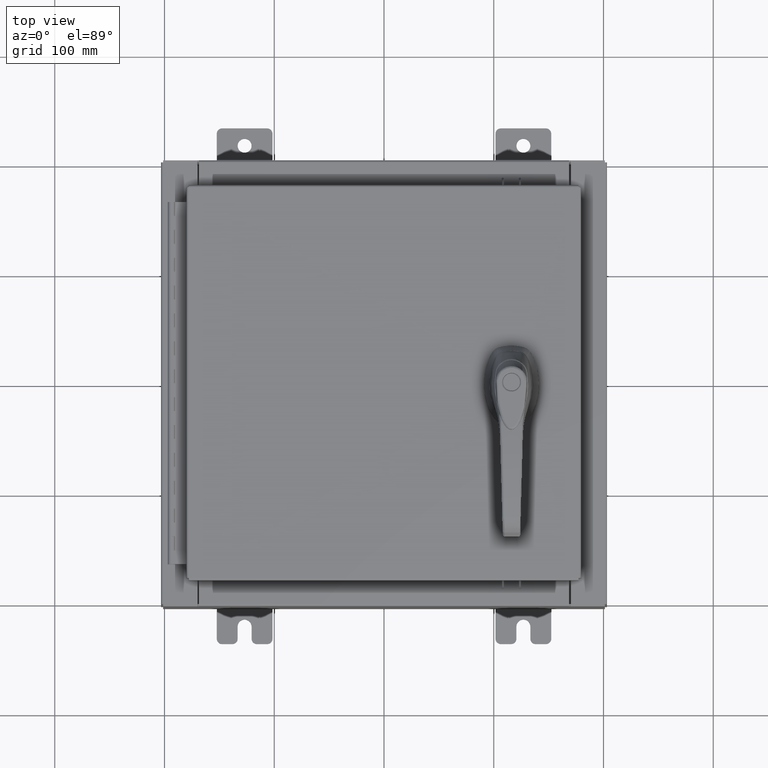
[diagram: clean part render]
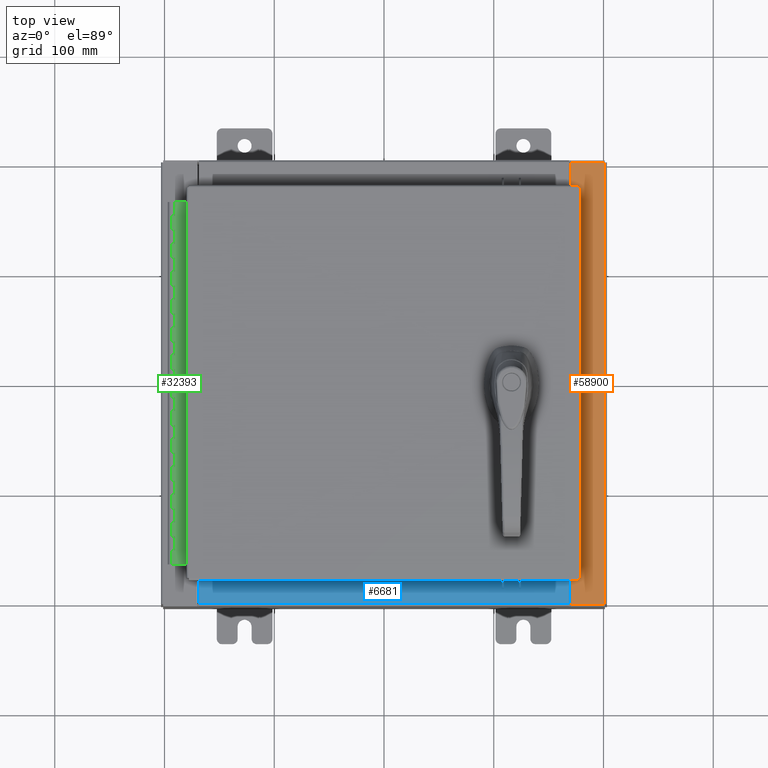
[diagram: same view with three faces highlighted in distinct colors, each labeled with its STEP entity id]
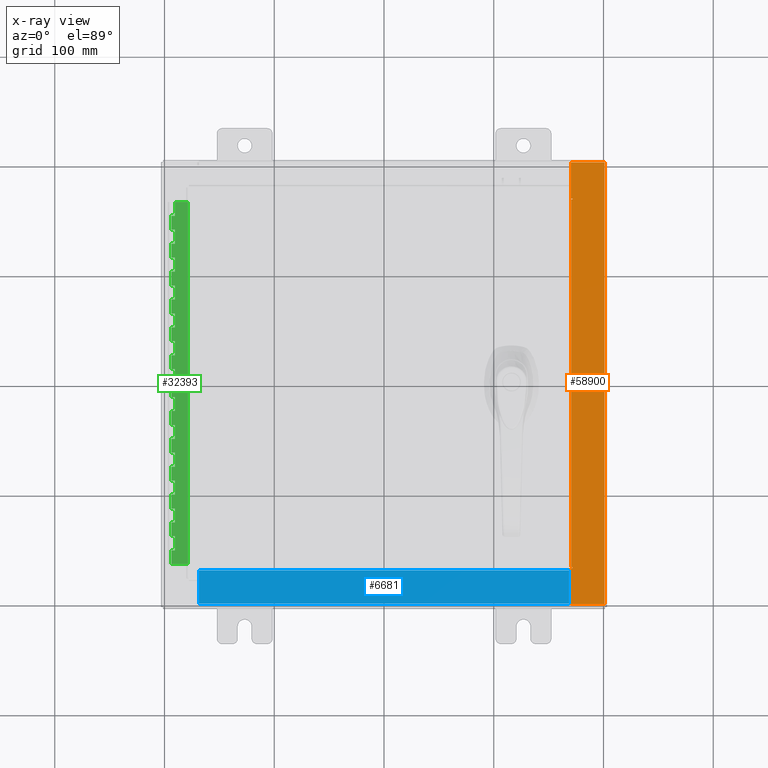
[diagram: x-ray of the same camera — body ghosted, the three highlighted faces saturated]
A machine part, top view with three faces highlighted in distinct colors.
The next image is the same camera in x-ray (body ghosted, the three faces saturated) — at least one of them is partly hidden behind the body in this view.
Their STEP definitions:

[orange] entity #58900 — the highlighted planar face has unit normal (-0, 0, -1).
#542 = VERTEX_POINT ( 'NONE', #72777 ) ;
#3331 = LINE ( 'NONE', #32971, #51940 ) ;
#3447 = VERTEX_POINT ( 'NONE', #53667 ) ;
#4137 = LINE ( 'NONE', #87693, #42500 ) ;
#5721 = EDGE_CURVE ( 'NONE', #79523, #10301, #68600, .T. ) ;
#5747 = DIRECTION ( 'NONE',  ( 1.000000000000000000, 0.0000000000000000000, 0.0000000000000000000 ) ) ;
#5882 = CARTESIAN_POINT ( 'NONE',  ( 7.912300000000019700, 7.925300000000000000, 5.925300000000001800 ) ) ;
#8992 = LINE ( 'NONE', #12297, #49904 ) ;
#10301 = VERTEX_POINT ( 'NONE', #60366 ) ;
#11306 = LINE ( 'NONE', #96520, #52231 ) ;
#11559 = LINE ( 'NONE', #66639, #74230 ) ;
#12242 = CARTESIAN_POINT ( 'NONE',  ( 7.912300000000019700, -7.925300000000000000, 5.925300000000001800 ) ) ;
#12297 = CARTESIAN_POINT ( 'NONE',  ( 6.750050000000020300, -6.593750000000000900, 5.925300000000009800 ) ) ;
#12693 = VERTEX_POINT ( 'NONE', #5882 ) ;
#12967 = VERTEX_POINT ( 'NONE', #17626 ) ;
#13094 = ORIENTED_EDGE ( 'NONE', *, *, #55236, .T. ) ;
#13906 = CIRCLE ( 'NONE', #92325, 0.01867500000000058700 ) ;
#16279 = EDGE_CURVE ( 'NONE', #55133, #24675, #13906, .T. ) ;
#16989 = VERTEX_POINT ( 'NONE', #54947 ) ;
#17487 = ORIENTED_EDGE ( 'NONE', *, *, #50685, .F. ) ;
#17626 = CARTESIAN_POINT ( 'NONE',  ( 7.912300000000019700, -7.925300000000000000, 5.925300000000001800 ) ) ;
#19723 = CARTESIAN_POINT ( 'NONE',  ( 6.699700000000019500, 7.925300000000000000, 5.925300000000009800 ) ) ;
#20335 = CARTESIAN_POINT ( 'NONE',  ( 6.712700000000020300, 6.593750000000000000, 5.925300000000009800 ) ) ;
#20336 = DIRECTION ( 'NONE',  ( 0.0000000000000000000, -1.000000000000000000, 0.0000000000000000000 ) ) ;
#20847 = AXIS2_PLACEMENT_3D ( 'NONE', #71318, #22371, #79506 ) ;
#21787 = VERTEX_POINT ( 'NONE', #76258 ) ;
#22133 = VERTEX_POINT ( 'NONE', #90401 ) ;
#22371 = DIRECTION ( 'NONE',  ( 7.132762385546378400E-015, 0.0000000000000000000, 1.000000000000000000 ) ) ;
#24248 = CARTESIAN_POINT ( 'NONE',  ( 4.252457061908995000E-014, 0.0000000000000000000, 5.925300000000058600 ) ) ;
#24675 = VERTEX_POINT ( 'NONE', #49939 ) ;
#28919 = CARTESIAN_POINT ( 'NONE',  ( 6.699700000000019500, 0.0000000000000000000, 5.925300000000009800 ) ) ;
#30998 = ORIENTED_EDGE ( 'NONE', *, *, #105250, .T. ) ;
#32026 = EDGE_CURVE ( 'NONE', #22133, #542, #45705, .T. ) ;
#32481 = DIRECTION ( 'NONE',  ( -1.000000000000000000, 0.0000000000000000000, 7.132762385546378400E-015 ) ) ;
#32971 = CARTESIAN_POINT ( 'NONE',  ( 6.750050000000020300, 6.631100000000000000, 5.925300000000009800 ) ) ;
#36425 = VECTOR ( 'NONE', #82761, 39.37007874015748100 ) ;
#38925 = ORIENTED_EDGE ( 'NONE', *, *, #5721, .T. ) ;
#40595 = EDGE_CURVE ( 'NONE', #21787, #22133, #11559, .T. ) ;
#42500 = VECTOR ( 'NONE', #95884, 39.37007874015748100 ) ;
#45197 = LINE ( 'NONE', #12242, #66993 ) ;
#45278 = ORIENTED_EDGE ( 'NONE', *, *, #32026, .F. ) ;
#45705 = LINE ( 'NONE', #20335, #67502 ) ;
#46255 = LINE ( 'NONE', #28919, #103769 ) ;
#46622 = ORIENTED_EDGE ( 'NONE', *, *, #62902, .T. ) ;
#47816 = EDGE_CURVE ( 'NONE', #16989, #55133, #11306, .T. ) ;
#48094 = CARTESIAN_POINT ( 'NONE',  ( 4.252457061908995000E-014, 7.925300000000000000, 5.925300000000058600 ) ) ;
#49904 = VECTOR ( 'NONE', #53040, 39.37007874015748100 ) ;
#49939 = CARTESIAN_POINT ( 'NONE',  ( 6.750050000000020300, -6.593750000000000900, 5.925300000000009800 ) ) ;
#50685 = EDGE_CURVE ( 'NONE', #3447, #10301, #3331, .T. ) ;
#51940 = VECTOR ( 'NONE', #81888, 39.37007874015748100 ) ;
#52231 = VECTOR ( 'NONE', #72205, 39.37007874015748100 ) ;
#53040 = DIRECTION ( 'NONE',  ( -1.000000000000000000, 0.0000000000000000000, 0.0000000000000000000 ) ) ;
#53667 = CARTESIAN_POINT ( 'NONE',  ( 6.750050000000020300, 6.631100000000000000, 5.925300000000009800 ) ) ;
#54028 = VERTEX_POINT ( 'NONE', #97640 ) ;
#54734 = DIRECTION ( 'NONE',  ( 7.132762385546378400E-015, 0.0000000000000000000, 1.000000000000000000 ) ) ;
#54947 = CARTESIAN_POINT ( 'NONE',  ( 6.699700000000019500, -6.631100000000002700, 5.925300000000009800 ) ) ;
#55133 = VERTEX_POINT ( 'NONE', #61649 ) ;
#55236 = EDGE_CURVE ( 'NONE', #54028, #12967, #4137, .T. ) ;
#56451 = ORIENTED_EDGE ( 'NONE', *, *, #61299, .F. ) ;
#58188 = LINE ( 'NONE', #48094, #36425 ) ;
#58900 = ADVANCED_FACE ( 'NONE', ( #59303 ), #97126, .F. ) ;
#59303 = FACE_OUTER_BOUND ( 'NONE', #81312, .T. ) ;
#60366 = CARTESIAN_POINT ( 'NONE',  ( 6.699700000000019500, 6.631099999999999100, 5.925300000000009800 ) ) ;
#61299 = EDGE_CURVE ( 'NONE', #542, #3447, #68038, .T. ) ;
#61649 = CARTESIAN_POINT ( 'NONE',  ( 6.750050000000020300, -6.631100000000000000, 5.925300000000009800 ) ) ;
#62902 = EDGE_CURVE ( 'NONE', #16989, #54028, #46255, .T. ) ;
#63488 = VECTOR ( 'NONE', #69598, 39.37007874015748100 ) ;
#66639 = CARTESIAN_POINT ( 'NONE',  ( 6.712700000000020300, -6.593750000000002700, 5.925300000000009800 ) ) ;
#66993 = VECTOR ( 'NONE', #94040, 39.37007874015748100 ) ;
#67502 = VECTOR ( 'NONE', #85714, 39.37007874015748100 ) ;
#68038 = CIRCLE ( 'NONE', #20847, 0.01867500000000058700 ) ;
#68600 = LINE ( 'NONE', #86027, #63488 ) ;
#69598 = DIRECTION ( 'NONE',  ( 0.0000000000000000000, -1.000000000000000000, 0.0000000000000000000 ) ) ;
#71318 = CARTESIAN_POINT ( 'NONE',  ( 6.750050000000020300, 6.612425000000000000, 5.925300000000009800 ) ) ;
#72205 = DIRECTION ( 'NONE',  ( 1.000000000000000000, 2.170286390199955400E-014, 0.0000000000000000000 ) ) ;
#72777 = CARTESIAN_POINT ( 'NONE',  ( 6.750050000000020300, 6.593749999999999100, 5.925300000000009800 ) ) ;
#74230 = VECTOR ( 'NONE', #92283, 39.37007874015748100 ) ;
#76258 = CARTESIAN_POINT ( 'NONE',  ( 6.712700000000020300, -6.593750000000000900, 5.925300000000009800 ) ) ;
#76757 = EDGE_CURVE ( 'NONE', #12693, #12967, #45197, .T. ) ;
#79506 = DIRECTION ( 'NONE',  ( 1.000000000000000000, 0.0000000000000000000, 0.0000000000000000000 ) ) ;
#79523 = VERTEX_POINT ( 'NONE', #19723 ) ;
#81312 = EDGE_LOOP ( 'NONE', ( #92826, #46622, #13094, #95637, #30998, #38925, #17487, #56451, #45278, #99694, #91756, #88545 ) ) ;
#81419 = DIRECTION ( 'NONE',  ( -7.132762385546378400E-015, 0.0000000000000000000, -1.000000000000000000 ) ) ;
#81888 = DIRECTION ( 'NONE',  ( -1.000000000000000000, 0.0000000000000000000, 0.0000000000000000000 ) ) ;
#82761 = DIRECTION ( 'NONE',  ( -1.000000000000000000, 0.0000000000000000000, 7.132762385546378400E-015 ) ) ;
#85714 = DIRECTION ( 'NONE',  ( 1.000000000000000000, 0.0000000000000000000, 0.0000000000000000000 ) ) ;
#86027 = CARTESIAN_POINT ( 'NONE',  ( 6.699700000000019500, 0.0000000000000000000, 5.925300000000009800 ) ) ;
#87693 = CARTESIAN_POINT ( 'NONE',  ( 4.959073083586130200E-014, -7.925300000000006200, 5.925300000000058600 ) ) ;
#88545 = ORIENTED_EDGE ( 'NONE', *, *, #16279, .F. ) ;
#90401 = CARTESIAN_POINT ( 'NONE',  ( 6.712700000000020300, 6.593750000000000000, 5.925300000000009800 ) ) ;
#91756 = ORIENTED_EDGE ( 'NONE', *, *, #96442, .F. ) ;
#92283 = DIRECTION ( 'NONE',  ( -0.0000000000000000000, 1.000000000000000000, -0.0000000000000000000 ) ) ;
#92325 = AXIS2_PLACEMENT_3D ( 'NONE', #103635, #54734, #5747 ) ;
#92826 = ORIENTED_EDGE ( 'NONE', *, *, #47816, .F. ) ;
#94040 = DIRECTION ( 'NONE',  ( -0.0000000000000000000, -1.000000000000000000, -0.0000000000000000000 ) ) ;
#95637 = ORIENTED_EDGE ( 'NONE', *, *, #76757, .F. ) ;
#95884 = DIRECTION ( 'NONE',  ( 1.000000000000000000, 8.915952981932975000E-016, -7.132762385546378400E-015 ) ) ;
#96442 = EDGE_CURVE ( 'NONE', #24675, #21787, #8992, .T. ) ;
#96520 = CARTESIAN_POINT ( 'NONE',  ( 6.699700000000019500, -6.631100000000002700, 5.925300000000009800 ) ) ;
#97126 = PLANE ( 'NONE',  #98802 ) ;
#97640 = CARTESIAN_POINT ( 'NONE',  ( 6.699700000000019500, -7.925300000000000900, 5.925300000000009800 ) ) ;
#98802 = AXIS2_PLACEMENT_3D ( 'NONE', #24248, #81419, #32481 ) ;
#99694 = ORIENTED_EDGE ( 'NONE', *, *, #40595, .F. ) ;
#103635 = CARTESIAN_POINT ( 'NONE',  ( 6.750050000000020300, -6.612425000000000900, 5.925300000000009800 ) ) ;
#103769 = VECTOR ( 'NONE', #20336, 39.37007874015748100 ) ;
#105250 = EDGE_CURVE ( 'NONE', #12693, #79523, #58188, .T. ) ;

[blue] entity #6681 — the highlighted planar face has unit normal (-0, -0, 1).
#657 = LINE ( 'NONE', #58163, #60804 ) ;
#2370 = CARTESIAN_POINT ( 'NONE',  ( -6.637200000000000000, -0.08770000000000026400, 3.000000000000000900 ) ) ;
#5563 = EDGE_CURVE ( 'NONE', #73919, #92436, #54553, .T. ) ;
#5705 = DIRECTION ( 'NONE',  ( -0.0000000000000000000, 1.000000000000000000, -3.566381192773190000E-015 ) ) ;
#6681 = ADVANCED_FACE ( 'NONE', ( #60815 ), #103167, .T. ) ;
#7710 = EDGE_CURVE ( 'NONE', #87974, #92436, #63277, .T. ) ;
#13478 = DIRECTION ( 'NONE',  ( 0.0000000000000000000, -1.000000000000000000, 3.566381192773190000E-015 ) ) ;
#17387 = DIRECTION ( 'NONE',  ( -0.0000000000000000000, -1.000000000000000000, 3.566381192773190000E-015 ) ) ;
#26421 = ORIENTED_EDGE ( 'NONE', *, *, #73550, .F. ) ;
#28797 = LINE ( 'NONE', #31615, #47944 ) ;
#31615 = CARTESIAN_POINT ( 'NONE',  ( 6.637200000000000900, -1.287299999999999900, 3.000000000000005300 ) ) ;
#47387 = AXIS2_PLACEMENT_3D ( 'NONE', #54239, #62482, #13478 ) ;
#47944 = VECTOR ( 'NONE', #64504, 39.37007874015748100 ) ;
#50192 = EDGE_LOOP ( 'NONE', ( #65275, #26421, #83766, #93670 ) ) ;
#54239 = CARTESIAN_POINT ( 'NONE',  ( 0.0000000000000000000, 1.069354855923099900E-014, 3.000000000000000900 ) ) ;
#54553 = LINE ( 'NONE', #58223, #73719 ) ;
#54696 = CARTESIAN_POINT ( 'NONE',  ( -6.637200000000000000, -0.07469999999999973900, 3.000000000000000900 ) ) ;
#57387 = CARTESIAN_POINT ( 'NONE',  ( -6.637200000000000000, -1.287299999999999200, 3.000000000000005300 ) ) ;
#58163 = CARTESIAN_POINT ( 'NONE',  ( 6.637200000000000000, -1.300299999999999800, 3.000000000000005300 ) ) ;
#58223 = CARTESIAN_POINT ( 'NONE',  ( 0.0000000000000000000, -0.08770000000000026400, 3.000000000000001300 ) ) ;
#58225 = VERTEX_POINT ( 'NONE', #79897 ) ;
#60804 = VECTOR ( 'NONE', #17387, 39.37007874015748100 ) ;
#60815 = FACE_OUTER_BOUND ( 'NONE', #50192, .T. ) ;
#62482 = DIRECTION ( 'NONE',  ( 0.0000000000000000000, 3.566381192773190000E-015, 1.000000000000000000 ) ) ;
#63277 = LINE ( 'NONE', #54696, #82437 ) ;
#64504 = DIRECTION ( 'NONE',  ( -1.000000000000000000, 0.0000000000000000000, 0.0000000000000000000 ) ) ;
#65275 = ORIENTED_EDGE ( 'NONE', *, *, #7710, .F. ) ;
#66870 = CARTESIAN_POINT ( 'NONE',  ( 6.637199999999999100, -0.08769999999999993100, 3.000000000000000900 ) ) ;
#73182 = EDGE_CURVE ( 'NONE', #73919, #58225, #657, .T. ) ;
#73550 = EDGE_CURVE ( 'NONE', #58225, #87974, #28797, .T. ) ;
#73719 = VECTOR ( 'NONE', #91043, 39.37007874015748100 ) ;
#73919 = VERTEX_POINT ( 'NONE', #66870 ) ;
#79897 = CARTESIAN_POINT ( 'NONE',  ( 6.637200000000000000, -1.287299999999999900, 3.000000000000005300 ) ) ;
#82437 = VECTOR ( 'NONE', #5705, 39.37007874015748100 ) ;
#83766 = ORIENTED_EDGE ( 'NONE', *, *, #73182, .F. ) ;
#87974 = VERTEX_POINT ( 'NONE', #57387 ) ;
#91043 = DIRECTION ( 'NONE',  ( -1.000000000000000000, 0.0000000000000000000, 0.0000000000000000000 ) ) ;
#92436 = VERTEX_POINT ( 'NONE', #2370 ) ;
#93670 = ORIENTED_EDGE ( 'NONE', *, *, #5563, .T. ) ;
#103167 = PLANE ( 'NONE',  #47387 ) ;

[green] entity #32393 — the highlighted planar face has unit normal (-0, -0, 1).
#83 = ORIENTED_EDGE ( 'NONE', *, *, #35373, .F. ) ;
#269 = CARTESIAN_POINT ( 'NONE',  ( -0.6869999999999982800, 0.5504999999999997700, -9.500000000000000000 ) ) ;
#697 = DIRECTION ( 'NONE',  ( -3.389037039080723100E-015, -1.000000000000000000, 0.0000000000000000000 ) ) ;
#873 = LINE ( 'NONE', #83514, #25228 ) ;
#1092 = CARTESIAN_POINT ( 'NONE',  ( -0.6869999999999978300, 0.6754999999999996600, -4.500000000000000000 ) ) ;
#1706 = ORIENTED_EDGE ( 'NONE', *, *, #65747, .F. ) ;
#2181 = CARTESIAN_POINT ( 'NONE',  ( -0.6869999999999978300, 0.6754999999999996600, -8.000000000000000000 ) ) ;
#2816 = VECTOR ( 'NONE', #77464, 39.37007874015748100 ) ;
#2843 = CARTESIAN_POINT ( 'NONE',  ( -0.6869999999999982800, 0.5504999999999997700, -10.50000000000000000 ) ) ;
#2904 = VERTEX_POINT ( 'NONE', #54519 ) ;
#3129 = DIRECTION ( 'NONE',  ( 0.0000000000000000000, 0.0000000000000000000, 1.000000000000000000 ) ) ;
#3356 = DIRECTION ( 'NONE',  ( -3.389037039080723100E-015, -1.000000000000000000, 0.0000000000000000000 ) ) ;
#3847 = EDGE_CURVE ( 'NONE', #85697, #37735, #63691, .T. ) ;
#3887 = LINE ( 'NONE', #13357, #71669 ) ;
#4282 = VERTEX_POINT ( 'NONE', #96606 ) ;
#4506 = CARTESIAN_POINT ( 'NONE',  ( -0.6869999999999973900, 0.8004999999999995500, -2.000000000000000000 ) ) ;
#4732 = DIRECTION ( 'NONE',  ( -3.389037039080723100E-015, -1.000000000000000000, 0.0000000000000000000 ) ) ;
#5328 = LINE ( 'NONE', #47662, #24521 ) ;
#5415 = EDGE_CURVE ( 'NONE', #57415, #43745, #62255, .T. ) ;
#5461 = LINE ( 'NONE', #8999, #38697 ) ;
#5955 = DIRECTION ( 'NONE',  ( 3.389037039080723100E-015, 1.000000000000000000, -0.0000000000000000000 ) ) ;
#6015 = FACE_OUTER_BOUND ( 'NONE', #96522, .T. ) ;
#6578 = CARTESIAN_POINT ( 'NONE',  ( -0.6869999999999973900, 0.8004999999999995500, -7.499999999999999100 ) ) ;
#6884 = ORIENTED_EDGE ( 'NONE', *, *, #63514, .F. ) ;
#6947 = ORIENTED_EDGE ( 'NONE', *, *, #94164, .T. ) ;
#7091 = CARTESIAN_POINT ( 'NONE',  ( -0.6869999999999978300, 0.6754999999999996600, -13.00000000000000000 ) ) ;
#7174 = EDGE_CURVE ( 'NONE', #71797, #11898, #21096, .T. ) ;
#7258 = ORIENTED_EDGE ( 'NONE', *, *, #31601, .F. ) ;
#7604 = VECTOR ( 'NONE', #94774, 39.37007874015748100 ) ;
#7788 = CARTESIAN_POINT ( 'NONE',  ( -0.6869999999999982800, 0.5504999999999997700, -6.000000000000000900 ) ) ;
#7800 = CARTESIAN_POINT ( 'NONE',  ( -0.6869999999999978300, 0.6754999999999996600, -13.00000000000000000 ) ) ;
#7955 = LINE ( 'NONE', #50721, #48872 ) ;
#8008 = DIRECTION ( 'NONE',  ( 0.0000000000000000000, -0.0000000000000000000, -1.000000000000000000 ) ) ;
#8463 = VECTOR ( 'NONE', #47936, 39.37007874015748100 ) ;
#8510 = CARTESIAN_POINT ( 'NONE',  ( -0.6869999999999978300, 0.6754999999999996600, -13.00000000000000000 ) ) ;
#8808 = VECTOR ( 'NONE', #68754, 39.37007874015748100 ) ;
#8999 = CARTESIAN_POINT ( 'NONE',  ( -0.6869999999999973900, 0.8004999999999995500, -2.500000000000000000 ) ) ;
#9033 = CARTESIAN_POINT ( 'NONE',  ( -0.6870000000000022800, -0.6245000000000003900, 0.0000000000000000000 ) ) ;
#9379 = DIRECTION ( 'NONE',  ( 0.0000000000000000000, 0.0000000000000000000, 1.000000000000000000 ) ) ;
#10425 = ORIENTED_EDGE ( 'NONE', *, *, #99638, .F. ) ;
#11174 = VECTOR ( 'NONE', #40223, 39.37007874015748100 ) ;
#11389 = VECTOR ( 'NONE', #90953, 39.37007874015748100 ) ;
#11544 = CARTESIAN_POINT ( 'NONE',  ( -0.6869999999999973900, 0.8004999999999995500, -11.00000000000000000 ) ) ;
#11816 = VERTEX_POINT ( 'NONE', #51396 ) ;
#11898 = VERTEX_POINT ( 'NONE', #19239 ) ;
#12041 = CARTESIAN_POINT ( 'NONE',  ( -0.6869999999999982800, 0.5504999999999997700, -5.500000000000000000 ) ) ;
#12363 = CARTESIAN_POINT ( 'NONE',  ( -0.6869999999999973900, 0.8004999999999995500, -8.000000000000000000 ) ) ;
#12763 = EDGE_CURVE ( 'NONE', #20539, #71059, #5328, .T. ) ;
#12769 = ORIENTED_EDGE ( 'NONE', *, *, #65432, .F. ) ;
#13175 = DIRECTION ( 'NONE',  ( 3.369016658928398200E-015, 1.000000000000000000, 0.0000000000000000000 ) ) ;
#13233 = CARTESIAN_POINT ( 'NONE',  ( -0.6869999999999973900, 0.8004999999999995500, -11.99999999999999800 ) ) ;
#13357 = CARTESIAN_POINT ( 'NONE',  ( -0.6869999999999982800, 0.5504999999999997700, -3.500000000000000000 ) ) ;
#13361 = VERTEX_POINT ( 'NONE', #45439 ) ;
#13608 = VECTOR ( 'NONE', #49276, 39.37007874015748100 ) ;
#13627 = VERTEX_POINT ( 'NONE', #46351 ) ;
#13676 = VERTEX_POINT ( 'NONE', #48477 ) ;
#14156 = EDGE_CURVE ( 'NONE', #103195, #23070, #3887, .T. ) ;
#14482 = EDGE_CURVE ( 'NONE', #67399, #36041, #104860, .T. ) ;
#14544 = LINE ( 'NONE', #90238, #33785 ) ;
#14855 = CARTESIAN_POINT ( 'NONE',  ( -0.6869999999999998300, 0.07549999999999991400, -13.00000000000000000 ) ) ;
#15138 = DIRECTION ( 'NONE',  ( 0.0000000000000000000, 0.0000000000000000000, 1.000000000000000000 ) ) ;
#15150 = DIRECTION ( 'NONE',  ( 3.389037039080723100E-015, 1.000000000000000000, -0.0000000000000000000 ) ) ;
#15397 = DIRECTION ( 'NONE',  ( 0.0000000000000000000, 0.0000000000000000000, 1.000000000000000000 ) ) ;
#15664 = ORIENTED_EDGE ( 'NONE', *, *, #27289, .F. ) ;
#16532 = EDGE_CURVE ( 'NONE', #29691, #22114, #20282, .T. ) ;
#17207 = VECTOR ( 'NONE', #53213, 39.37007874015748100 ) ;
#17224 = DIRECTION ( 'NONE',  ( -3.389037039080723100E-015, -1.000000000000000000, 0.0000000000000000000 ) ) ;
#17255 = DIRECTION ( 'NONE',  ( 3.369016658928398200E-015, 1.000000000000000000, 0.0000000000000000000 ) ) ;
#17257 = DIRECTION ( 'NONE',  ( -3.389037039080723100E-015, -1.000000000000000000, 0.0000000000000000000 ) ) ;
#17665 = AXIS2_PLACEMENT_3D ( 'NONE', #53590, #62188, #13175 ) ;
#17829 = VECTOR ( 'NONE', #53486, 39.37007874015748100 ) ;
#18067 = LINE ( 'NONE', #101010, #59029 ) ;
#18108 = CARTESIAN_POINT ( 'NONE',  ( -0.6869999999999978300, 0.6754999999999996600, -5.500000000000000000 ) ) ;
#18154 = CARTESIAN_POINT ( 'NONE',  ( -0.6869999999999973900, 0.8004999999999995500, -10.00000000000000000 ) ) ;
#19119 = ORIENTED_EDGE ( 'NONE', *, *, #74608, .F. ) ;
#19239 = CARTESIAN_POINT ( 'NONE',  ( -0.6869999999999978300, 0.6754999999999996600, -6.000000000000000900 ) ) ;
#19441 = CARTESIAN_POINT ( 'NONE',  ( -0.6869999999999973900, 0.8004999999999995500, -4.500000000000000000 ) ) ;
#20012 = CARTESIAN_POINT ( 'NONE',  ( -0.6869999999999982800, 0.5504999999999997700, -2.999999999999999600 ) ) ;
#20178 = LINE ( 'NONE', #103840, #39372 ) ;
#20282 = LINE ( 'NONE', #40411, #85497 ) ;
#20297 = CARTESIAN_POINT ( 'NONE',  ( -0.6869999999999982800, 0.5504999999999997700, -12.49999999999999800 ) ) ;
#20539 = VERTEX_POINT ( 'NONE', #95017 ) ;
#20841 = EDGE_CURVE ( 'NONE', #43745, #75485, #100368, .T. ) ;
#21096 = LINE ( 'NONE', #41909, #62055 ) ;
#22114 = VERTEX_POINT ( 'NONE', #81847 ) ;
#22178 = VERTEX_POINT ( 'NONE', #35730 ) ;
#22180 = CARTESIAN_POINT ( 'NONE',  ( -0.6869999999999978300, 0.6754999999999996600, -7.000000000000000000 ) ) ;
#22253 = VECTOR ( 'NONE', #24483, 39.37007874015748100 ) ;
#22531 = ORIENTED_EDGE ( 'NONE', *, *, #54896, .F. ) ;
#23070 = VERTEX_POINT ( 'NONE', #65583 ) ;
#23318 = CARTESIAN_POINT ( 'NONE',  ( -0.6869999999999973900, 0.8004999999999995500, -5.500000000000000000 ) ) ;
#23621 = ORIENTED_EDGE ( 'NONE', *, *, #92911, .F. ) ;
#23760 = CARTESIAN_POINT ( 'NONE',  ( -0.6869999999999978300, 0.6754999999999996600, -4.000000000000000000 ) ) ;
#24117 = CARTESIAN_POINT ( 'NONE',  ( -0.6869999999999982800, 0.5504999999999997700, -10.50000000000000000 ) ) ;
#24254 = VECTOR ( 'NONE', #38144, 39.37007874015748100 ) ;
#24322 = CARTESIAN_POINT ( 'NONE',  ( -0.6869999999999978300, 0.6754999999999996600, -1.000000000000000000 ) ) ;
#24483 = DIRECTION ( 'NONE',  ( -3.389037039080723100E-015, -1.000000000000000000, 0.0000000000000000000 ) ) ;
#24521 = VECTOR ( 'NONE', #71616, 39.37007874015748100 ) ;
#24538 = EDGE_CURVE ( 'NONE', #82516, #2904, #27316, .T. ) ;
#24990 = EDGE_CURVE ( 'NONE', #4282, #100788, #55412, .T. ) ;
#25046 = ORIENTED_EDGE ( 'NONE', *, *, #35392, .T. ) ;
#25202 = EDGE_CURVE ( 'NONE', #68643, #4282, #61755, .T. ) ;
#25228 = VECTOR ( 'NONE', #81032, 39.37007874015748100 ) ;
#25533 = CARTESIAN_POINT ( 'NONE',  ( -0.6869999999999982800, 0.5504999999999997700, -7.499999999999999100 ) ) ;
#25594 = CARTESIAN_POINT ( 'NONE',  ( -0.6869999999999982800, 0.5504999999999997700, -4.500000000000000000 ) ) ;
#25678 = VERTEX_POINT ( 'NONE', #98514 ) ;
#25856 = CARTESIAN_POINT ( 'NONE',  ( -0.6869999999999978300, 0.6754999999999996600, -2.999999999999999600 ) ) ;
#26051 = DIRECTION ( 'NONE',  ( 3.389037039080723100E-015, 1.000000000000000000, -0.0000000000000000000 ) ) ;
#26087 = CARTESIAN_POINT ( 'NONE',  ( -0.6869999999999978300, 0.6754999999999996600, -6.499999999999999100 ) ) ;
#26236 = LINE ( 'NONE', #72585, #42830 ) ;
#26315 = ORIENTED_EDGE ( 'NONE', *, *, #32540, .F. ) ;
#26713 = VECTOR ( 'NONE', #60914, 39.37007874015748100 ) ;
#27232 = CARTESIAN_POINT ( 'NONE',  ( -0.6869999999999982800, 0.5504999999999997700, -9.500000000000000000 ) ) ;
#27289 = EDGE_CURVE ( 'NONE', #13361, #101632, #56446, .T. ) ;
#27316 = LINE ( 'NONE', #7800, #29861 ) ;
#27399 = ORIENTED_EDGE ( 'NONE', *, *, #3847, .F. ) ;
#27452 = VERTEX_POINT ( 'NONE', #74599 ) ;
#28099 = CARTESIAN_POINT ( 'NONE',  ( -0.6869999999999978300, 0.6754999999999996600, -2.000000000000000000 ) ) ;
#28116 = VERTEX_POINT ( 'NONE', #83391 ) ;
#28255 = ORIENTED_EDGE ( 'NONE', *, *, #83071, .T. ) ;
#28537 = CARTESIAN_POINT ( 'NONE',  ( -0.6869999999999978300, 0.6754999999999996600, -13.00000000000000000 ) ) ;
#28689 = LINE ( 'NONE', #35980, #86198 ) ;
#29188 = LINE ( 'NONE', #95468, #89257 ) ;
#29197 = VECTOR ( 'NONE', #17255, 39.37007874015748100 ) ;
#29331 = LINE ( 'NONE', #29442, #7604 ) ;
#29442 = CARTESIAN_POINT ( 'NONE',  ( -0.6869999999999973900, 0.8004999999999995500, -11.50000000000000000 ) ) ;
#29691 = VERTEX_POINT ( 'NONE', #89105 ) ;
#29792 = VERTEX_POINT ( 'NONE', #90164 ) ;
#29861 = VECTOR ( 'NONE', #48525, 39.37007874015748100 ) ;
#29989 = ORIENTED_EDGE ( 'NONE', *, *, #52091, .F. ) ;
#30075 = CARTESIAN_POINT ( 'NONE',  ( -0.6869999999999982800, 0.5504999999999997700, -7.499999999999999100 ) ) ;
#30197 = LINE ( 'NONE', #23318, #8463 ) ;
#30555 = LINE ( 'NONE', #11544, #8808 ) ;
#30806 = EDGE_CURVE ( 'NONE', #37735, #2904, #31786, .T. ) ;
#31290 = VERTEX_POINT ( 'NONE', #22180 ) ;
#31473 = ORIENTED_EDGE ( 'NONE', *, *, #16532, .F. ) ;
#31601 = EDGE_CURVE ( 'NONE', #98949, #11816, #20178, .T. ) ;
#31786 = LINE ( 'NONE', #9033, #29197 ) ;
#32393 = ADVANCED_FACE ( 'NONE', ( #6015 ), #53925, .T. ) ;
#32439 = ORIENTED_EDGE ( 'NONE', *, *, #20841, .F. ) ;
#32526 = EDGE_CURVE ( 'NONE', #29792, #100788, #90407, .T. ) ;
#32540 = EDGE_CURVE ( 'NONE', #89180, #94882, #873, .T. ) ;
#32675 = CARTESIAN_POINT ( 'NONE',  ( -0.6869999999999973900, 0.8004999999999995500, -3.500000000000000000 ) ) ;
#32792 = ORIENTED_EDGE ( 'NONE', *, *, #63547, .F. ) ;
#33069 = LINE ( 'NONE', #8510, #71362 ) ;
#33183 = CARTESIAN_POINT ( 'NONE',  ( -0.6869999999999978300, 0.6754999999999996600, -9.000000000000000000 ) ) ;
#33232 = ORIENTED_EDGE ( 'NONE', *, *, #75689, .F. ) ;
#33635 = EDGE_CURVE ( 'NONE', #100384, #45539, #53193, .T. ) ;
#33785 = VECTOR ( 'NONE', #89523, 39.37007874015748100 ) ;
#34052 = CARTESIAN_POINT ( 'NONE',  ( -0.6869999999999978300, 0.6754999999999996600, -0.5000000000000000000 ) ) ;
#34166 = VERTEX_POINT ( 'NONE', #28099 ) ;
#34591 = CARTESIAN_POINT ( 'NONE',  ( -0.6869999999999982800, 0.5504999999999997700, -5.500000000000000000 ) ) ;
#34675 = ORIENTED_EDGE ( 'NONE', *, *, #25202, .F. ) ;
#34937 = CARTESIAN_POINT ( 'NONE',  ( -0.6869999999999982800, 0.5504999999999997700, -3.500000000000000000 ) ) ;
#35126 = VECTOR ( 'NONE', #76726, 39.37007874015748100 ) ;
#35264 = ORIENTED_EDGE ( 'NONE', *, *, #14156, .F. ) ;
#35373 = EDGE_CURVE ( 'NONE', #58590, #77307, #82433, .T. ) ;
#35392 = EDGE_CURVE ( 'NONE', #85697, #96547, #79849, .T. ) ;
#35730 = CARTESIAN_POINT ( 'NONE',  ( -0.6869999999999982800, 0.5504999999999997700, -11.00000000000000000 ) ) ;
#35980 = CARTESIAN_POINT ( 'NONE',  ( -0.6869999999999982800, 0.5504999999999997700, -11.50000000000000000 ) ) ;
#36041 = VERTEX_POINT ( 'NONE', #90710 ) ;
#36277 = VECTOR ( 'NONE', #61765, 39.37007874015748100 ) ;
#37243 = LINE ( 'NONE', #64154, #94728 ) ;
#37369 = VECTOR ( 'NONE', #17257, 39.37007874015748100 ) ;
#37494 = VECTOR ( 'NONE', #697, 39.37007874015748100 ) ;
#37652 = ORIENTED_EDGE ( 'NONE', *, *, #5415, .F. ) ;
#37735 = VERTEX_POINT ( 'NONE', #70193 ) ;
#37747 = VECTOR ( 'NONE', #26051, 39.37007874015748100 ) ;
#38144 = DIRECTION ( 'NONE',  ( 3.389037039080723100E-015, 1.000000000000000000, -0.0000000000000000000 ) ) ;
#38276 = LINE ( 'NONE', #25594, #11389 ) ;
#38697 = VECTOR ( 'NONE', #17224, 39.37007874015748100 ) ;
#38961 = VECTOR ( 'NONE', #80626, 39.37007874015748100 ) ;
#38981 = CARTESIAN_POINT ( 'NONE',  ( -0.6869999999999978300, 0.6754999999999996600, -9.500000000000000000 ) ) ;
#39372 = VECTOR ( 'NONE', #5955, 39.37007874015748100 ) ;
#39668 = VECTOR ( 'NONE', #71573, 39.37007874015748100 ) ;
#39685 = ORIENTED_EDGE ( 'NONE', *, *, #86176, .F. ) ;
#39968 = DIRECTION ( 'NONE',  ( 0.0000000000000000000, -0.0000000000000000000, -1.000000000000000000 ) ) ;
#40036 = LINE ( 'NONE', #24117, #61782 ) ;
#40166 = CARTESIAN_POINT ( 'NONE',  ( -0.6869999999999978300, 0.6754999999999996600, -11.50000000000000000 ) ) ;
#40223 = DIRECTION ( 'NONE',  ( -3.389037039080723100E-015, -1.000000000000000000, 0.0000000000000000000 ) ) ;
#40411 = CARTESIAN_POINT ( 'NONE',  ( -0.6869999999999982800, 0.5504999999999997700, -1.499999999999999800 ) ) ;
#40450 = ORIENTED_EDGE ( 'NONE', *, *, #69751, .F. ) ;
#41366 = VERTEX_POINT ( 'NONE', #38981 ) ;
#41909 = CARTESIAN_POINT ( 'NONE',  ( -0.6869999999999973900, 0.8004999999999995500, -6.000000000000000900 ) ) ;
#41941 = VECTOR ( 'NONE', #75237, 39.37007874015748100 ) ;
#42318 = CARTESIAN_POINT ( 'NONE',  ( -0.6869999999999982800, 0.5504999999999997700, -12.49999999999999800 ) ) ;
#42392 = EDGE_CURVE ( 'NONE', #27452, #13627, #5461, .T. ) ;
#42830 = VECTOR ( 'NONE', #15397, 39.37007874015748100 ) ;
#43024 = ORIENTED_EDGE ( 'NONE', *, *, #14482, .F. ) ;
#43745 = VERTEX_POINT ( 'NONE', #82505 ) ;
#43813 = ORIENTED_EDGE ( 'NONE', *, *, #24538, .T. ) ;
#44401 = DIRECTION ( 'NONE',  ( 0.0000000000000000000, -0.0000000000000000000, -1.000000000000000000 ) ) ;
#44948 = ORIENTED_EDGE ( 'NONE', *, *, #101585, .F. ) ;
#45142 = CARTESIAN_POINT ( 'NONE',  ( -0.6869999999999982800, 0.5504999999999997700, -9.000000000000000000 ) ) ;
#45439 = CARTESIAN_POINT ( 'NONE',  ( -0.6869999999999982800, 0.5504999999999997700, -6.499999999999999100 ) ) ;
#45539 = VERTEX_POINT ( 'NONE', #25856 ) ;
#46351 = CARTESIAN_POINT ( 'NONE',  ( -0.6869999999999982800, 0.5504999999999997700, -2.500000000000000000 ) ) ;
#47662 = CARTESIAN_POINT ( 'NONE',  ( -0.6869999999999973900, 0.8004999999999995500, -1.000000000000000000 ) ) ;
#47936 = DIRECTION ( 'NONE',  ( -3.389037039080723100E-015, -1.000000000000000000, 0.0000000000000000000 ) ) ;
#48119 = CARTESIAN_POINT ( 'NONE',  ( -0.6870000000000022800, -0.6245000000000003900, -13.00000000000000000 ) ) ;
#48437 = ORIENTED_EDGE ( 'NONE', *, *, #75534, .F. ) ;
#48477 = CARTESIAN_POINT ( 'NONE',  ( -0.6869999999999978300, 0.6754999999999996600, -11.00000000000000000 ) ) ;
#48525 = DIRECTION ( 'NONE',  ( 0.0000000000000000000, 0.0000000000000000000, 1.000000000000000000 ) ) ;
#48872 = VECTOR ( 'NONE', #58616, 39.37007874015748100 ) ;
#49276 = DIRECTION ( 'NONE',  ( 0.0000000000000000000, -0.0000000000000000000, -1.000000000000000000 ) ) ;
#50144 = VERTEX_POINT ( 'NONE', #26087 ) ;
#50520 = LINE ( 'NONE', #72309, #93954 ) ;
#50553 = EDGE_CURVE ( 'NONE', #100731, #83935, #30197, .T. ) ;
#50595 = CARTESIAN_POINT ( 'NONE',  ( -0.6869999999999998300, 0.07549999999999991400, -13.00000000000000000 ) ) ;
#50721 = CARTESIAN_POINT ( 'NONE',  ( -0.6869999999999978300, 0.6754999999999996600, -13.00000000000000000 ) ) ;
#51396 = CARTESIAN_POINT ( 'NONE',  ( -0.6869999999999978300, 0.6754999999999996600, -5.000000000000000000 ) ) ;
#51687 = LINE ( 'NONE', #12041, #73428 ) ;
#52091 = EDGE_CURVE ( 'NONE', #100365, #20539, #74808, .T. ) ;
#52094 = LINE ( 'NONE', #97364, #11174 ) ;
#52649 = CARTESIAN_POINT ( 'NONE',  ( -0.6869999999999978300, 0.6754999999999996600, -13.00000000000000000 ) ) ;
#52811 = VECTOR ( 'NONE', #53460, 39.37007874015748100 ) ;
#53124 = CARTESIAN_POINT ( 'NONE',  ( -0.6869999999999982800, 0.5504999999999997700, -5.000000000000000000 ) ) ;
#53193 = LINE ( 'NONE', #63729, #96677 ) ;
#53213 = DIRECTION ( 'NONE',  ( -3.389037039080723100E-015, -1.000000000000000000, 0.0000000000000000000 ) ) ;
#53460 = DIRECTION ( 'NONE',  ( 3.389037039080723100E-015, 1.000000000000000000, -0.0000000000000000000 ) ) ;
#53486 = DIRECTION ( 'NONE',  ( 3.389037039080723100E-015, 1.000000000000000000, -0.0000000000000000000 ) ) ;
#53590 = CARTESIAN_POINT ( 'NONE',  ( -0.6870000000000022800, -0.6245000000000003900, -13.00000000000000000 ) ) ;
#53925 = PLANE ( 'NONE',  #17665 ) ;
#53942 = ORIENTED_EDGE ( 'NONE', *, *, #50553, .F. ) ;
#54298 = ORIENTED_EDGE ( 'NONE', *, *, #90416, .F. ) ;
#54467 = CARTESIAN_POINT ( 'NONE',  ( -0.6869999999999982800, 0.5504999999999997700, -13.00000000000000000 ) ) ;
#54519 = CARTESIAN_POINT ( 'NONE',  ( -0.6869999999999978300, 0.6754999999999996600, 0.0000000000000000000 ) ) ;
#54896 = EDGE_CURVE ( 'NONE', #94882, #67797, #60483, .T. ) ;
#55412 = LINE ( 'NONE', #12363, #52811 ) ;
#55474 = EDGE_CURVE ( 'NONE', #83102, #103195, #78251, .T. ) ;
#55579 = DIRECTION ( 'NONE',  ( -3.389037039080723100E-015, -1.000000000000000000, 0.0000000000000000000 ) ) ;
#55599 = VECTOR ( 'NONE', #81048, 39.37007874015748100 ) ;
#56068 = ORIENTED_EDGE ( 'NONE', *, *, #73506, .T. ) ;
#56446 = LINE ( 'NONE', #72475, #99882 ) ;
#56452 = VECTOR ( 'NONE', #55579, 39.37007874015748100 ) ;
#57224 = CARTESIAN_POINT ( 'NONE',  ( -0.6869999999999982800, 0.5504999999999997700, -11.99999999999999800 ) ) ;
#57415 = VERTEX_POINT ( 'NONE', #27232 ) ;
#57895 = EDGE_CURVE ( 'NONE', #92346, #71059, #78515, .T. ) ;
#58009 = EDGE_CURVE ( 'NONE', #83935, #71797, #51687, .T. ) ;
#58036 = LINE ( 'NONE', #28537, #36277 ) ;
#58367 = DIRECTION ( 'NONE',  ( 3.389037039080723100E-015, 1.000000000000000000, -0.0000000000000000000 ) ) ;
#58382 = EDGE_CURVE ( 'NONE', #41366, #57415, #14544, .T. ) ;
#58590 = VERTEX_POINT ( 'NONE', #101603 ) ;
#58616 = DIRECTION ( 'NONE',  ( 0.0000000000000000000, 0.0000000000000000000, 1.000000000000000000 ) ) ;
#58801 = CARTESIAN_POINT ( 'NONE',  ( -0.6869999999999982800, 0.5504999999999997700, -7.000000000000000000 ) ) ;
#59029 = VECTOR ( 'NONE', #3129, 39.37007874015748100 ) ;
#60483 = LINE ( 'NONE', #75940, #101339 ) ;
#60914 = DIRECTION ( 'NONE',  ( 0.0000000000000000000, 0.0000000000000000000, 1.000000000000000000 ) ) ;
#61755 = LINE ( 'NONE', #25533, #105201 ) ;
#61765 = DIRECTION ( 'NONE',  ( 0.0000000000000000000, 0.0000000000000000000, 1.000000000000000000 ) ) ;
#61782 = VECTOR ( 'NONE', #8008, 39.37007874015748100 ) ;
#62055 = VECTOR ( 'NONE', #58367, 39.37007874015748100 ) ;
#62188 = DIRECTION ( 'NONE',  ( 1.000000000000000000, -3.369016658928398200E-015, 0.0000000000000000000 ) ) ;
#62255 = LINE ( 'NONE', #269, #13608 ) ;
#63406 = CARTESIAN_POINT ( 'NONE',  ( -0.6869999999999978300, 0.6754999999999996600, -13.00000000000000000 ) ) ;
#63514 = EDGE_CURVE ( 'NONE', #25678, #68643, #99887, .T. ) ;
#63547 = EDGE_CURVE ( 'NONE', #101632, #31290, #37243, .T. ) ;
#63691 = LINE ( 'NONE', #50595, #41941 ) ;
#63729 = CARTESIAN_POINT ( 'NONE',  ( -0.6869999999999973900, 0.8004999999999995500, -2.999999999999999600 ) ) ;
#64154 = CARTESIAN_POINT ( 'NONE',  ( -0.6869999999999973900, 0.8004999999999995500, -7.000000000000000000 ) ) ;
#65432 = EDGE_CURVE ( 'NONE', #23070, #72530, #67756, .T. ) ;
#65513 = LINE ( 'NONE', #20297, #2816 ) ;
#65583 = CARTESIAN_POINT ( 'NONE',  ( -0.6869999999999982800, 0.5504999999999997700, -4.000000000000000000 ) ) ;
#65747 = EDGE_CURVE ( 'NONE', #86509, #98949, #38276, .T. ) ;
#65807 = CARTESIAN_POINT ( 'NONE',  ( -0.6869999999999973900, 0.8004999999999995500, -8.500000000000000000 ) ) ;
#65876 = ORIENTED_EDGE ( 'NONE', *, *, #95881, .F. ) ;
#66151 = VECTOR ( 'NONE', #97124, 39.37007874015748100 ) ;
#66203 = CARTESIAN_POINT ( 'NONE',  ( -0.6869999999999982800, 0.5504999999999997700, -4.500000000000000000 ) ) ;
#66440 = CARTESIAN_POINT ( 'NONE',  ( -0.6869999999999978300, 0.6754999999999996600, -13.00000000000000000 ) ) ;
#67150 = CARTESIAN_POINT ( 'NONE',  ( -0.6869999999999978300, 0.6754999999999996600, -3.500000000000000000 ) ) ;
#67399 = VERTEX_POINT ( 'NONE', #57224 ) ;
#67496 = ORIENTED_EDGE ( 'NONE', *, *, #32526, .T. ) ;
#67756 = LINE ( 'NONE', #95286, #24254 ) ;
#67797 = VERTEX_POINT ( 'NONE', #33183 ) ;
#68559 = CARTESIAN_POINT ( 'NONE',  ( -0.6869999999999978300, 0.6754999999999996600, -13.00000000000000000 ) ) ;
#68643 = VERTEX_POINT ( 'NONE', #30075 ) ;
#68754 = DIRECTION ( 'NONE',  ( 3.389037039080723100E-015, 1.000000000000000000, -0.0000000000000000000 ) ) ;
#69237 = LINE ( 'NONE', #66440, #71779 ) ;
#69312 = VERTEX_POINT ( 'NONE', #42318 ) ;
#69750 = ORIENTED_EDGE ( 'NONE', *, *, #95849, .T. ) ;
#69751 = EDGE_CURVE ( 'NONE', #50144, #13361, #29188, .T. ) ;
#70193 = CARTESIAN_POINT ( 'NONE',  ( -0.6869999999999998300, 0.07549999999999991400, 0.0000000000000000000 ) ) ;
#70194 = DIRECTION ( 'NONE',  ( 0.0000000000000000000, -0.0000000000000000000, -1.000000000000000000 ) ) ;
#70870 = ORIENTED_EDGE ( 'NONE', *, *, #58382, .F. ) ;
#71059 = VERTEX_POINT ( 'NONE', #24322 ) ;
#71362 = VECTOR ( 'NONE', #98535, 39.37007874015748100 ) ;
#71381 = CARTESIAN_POINT ( 'NONE',  ( -0.6869999999999982800, 0.5504999999999997700, -2.500000000000000000 ) ) ;
#71573 = DIRECTION ( 'NONE',  ( 0.0000000000000000000, 0.0000000000000000000, 1.000000000000000000 ) ) ;
#71616 = DIRECTION ( 'NONE',  ( 3.389037039080723100E-015, 1.000000000000000000, -0.0000000000000000000 ) ) ;
#71669 = VECTOR ( 'NONE', #70194, 39.37007874015748100 ) ;
#71779 = VECTOR ( 'NONE', #99277, 39.37007874015748100 ) ;
#71797 = VERTEX_POINT ( 'NONE', #7788 ) ;
#72033 = ORIENTED_EDGE ( 'NONE', *, *, #33635, .F. ) ;
#72220 = VECTOR ( 'NONE', #44401, 39.37007874015748100 ) ;
#72309 = CARTESIAN_POINT ( 'NONE',  ( -0.6869999999999978300, 0.6754999999999996600, -13.00000000000000000 ) ) ;
#72475 = CARTESIAN_POINT ( 'NONE',  ( -0.6869999999999982800, 0.5504999999999997700, -6.499999999999999100 ) ) ;
#72530 = VERTEX_POINT ( 'NONE', #23760 ) ;
#72585 = CARTESIAN_POINT ( 'NONE',  ( -0.6869999999999978300, 0.6754999999999996600, -13.00000000000000000 ) ) ;
#72710 = VECTOR ( 'NONE', #3356, 39.37007874015748100 ) ;
#73428 = VECTOR ( 'NONE', #85658, 39.37007874015748100 ) ;
#73506 = EDGE_CURVE ( 'NONE', #100731, #11816, #50520, .T. ) ;
#73569 = VERTEX_POINT ( 'NONE', #40166 ) ;
#73641 = CARTESIAN_POINT ( 'NONE',  ( -0.6869999999999978300, 0.6754999999999996600, -10.00000000000000000 ) ) ;
#73683 = EDGE_CURVE ( 'NONE', #92814, #36041, #26236, .T. ) ;
#74468 = DIRECTION ( 'NONE',  ( 0.0000000000000000000, -0.0000000000000000000, -1.000000000000000000 ) ) ;
#74573 = ORIENTED_EDGE ( 'NONE', *, *, #96666, .T. ) ;
#74599 = CARTESIAN_POINT ( 'NONE',  ( -0.6869999999999978300, 0.6754999999999996600, -2.500000000000000000 ) ) ;
#74608 = EDGE_CURVE ( 'NONE', #28116, #67399, #28689, .T. ) ;
#74808 = LINE ( 'NONE', #92988, #72220 ) ;
#75237 = DIRECTION ( 'NONE',  ( 0.0000000000000000000, 0.0000000000000000000, 1.000000000000000000 ) ) ;
#75289 = LINE ( 'NONE', #19441, #72710 ) ;
#75485 = VERTEX_POINT ( 'NONE', #73641 ) ;
#75534 = EDGE_CURVE ( 'NONE', #29792, #89180, #83550, .T. ) ;
#75689 = EDGE_CURVE ( 'NONE', #13627, #100384, #102688, .T. ) ;
#75940 = CARTESIAN_POINT ( 'NONE',  ( -0.6869999999999973900, 0.8004999999999995500, -9.000000000000000000 ) ) ;
#76349 = EDGE_CURVE ( 'NONE', #92346, #29691, #87449, .T. ) ;
#76563 = LINE ( 'NONE', #99090, #98312 ) ;
#76726 = DIRECTION ( 'NONE',  ( 0.0000000000000000000, 0.0000000000000000000, 1.000000000000000000 ) ) ;
#77003 = ORIENTED_EDGE ( 'NONE', *, *, #12763, .F. ) ;
#77307 = VERTEX_POINT ( 'NONE', #2843 ) ;
#77464 = DIRECTION ( 'NONE',  ( 0.0000000000000000000, -0.0000000000000000000, -1.000000000000000000 ) ) ;
#78126 = ORIENTED_EDGE ( 'NONE', *, *, #98164, .T. ) ;
#78251 = LINE ( 'NONE', #32675, #37369 ) ;
#78515 = LINE ( 'NONE', #68559, #35126 ) ;
#79849 = LINE ( 'NONE', #48119, #38961 ) ;
#80475 = LINE ( 'NONE', #4506, #17829 ) ;
#80626 = DIRECTION ( 'NONE',  ( 3.369016658928398200E-015, 1.000000000000000000, 0.0000000000000000000 ) ) ;
#81032 = DIRECTION ( 'NONE',  ( 0.0000000000000000000, -0.0000000000000000000, -1.000000000000000000 ) ) ;
#81048 = DIRECTION ( 'NONE',  ( 0.0000000000000000000, -0.0000000000000000000, -1.000000000000000000 ) ) ;
#81847 = CARTESIAN_POINT ( 'NONE',  ( -0.6869999999999982800, 0.5504999999999997700, -2.000000000000000000 ) ) ;
#82120 = EDGE_CURVE ( 'NONE', #73569, #28116, #29331, .T. ) ;
#82433 = LINE ( 'NONE', #93910, #17207 ) ;
#82505 = CARTESIAN_POINT ( 'NONE',  ( -0.6869999999999982800, 0.5504999999999997700, -10.00000000000000000 ) ) ;
#82516 = VERTEX_POINT ( 'NONE', #34052 ) ;
#83063 = ORIENTED_EDGE ( 'NONE', *, *, #57895, .T. ) ;
#83071 = EDGE_CURVE ( 'NONE', #41366, #67797, #69237, .T. ) ;
#83102 = VERTEX_POINT ( 'NONE', #67150 ) ;
#83144 = VECTOR ( 'NONE', #95029, 39.37007874015748100 ) ;
#83213 = EDGE_CURVE ( 'NONE', #73569, #13676, #18067, .T. ) ;
#83391 = CARTESIAN_POINT ( 'NONE',  ( -0.6869999999999982800, 0.5504999999999997700, -11.50000000000000000 ) ) ;
#83514 = CARTESIAN_POINT ( 'NONE',  ( -0.6869999999999982800, 0.5504999999999997700, -8.500000000000000000 ) ) ;
#83550 = LINE ( 'NONE', #65807, #37494 ) ;
#83935 = VERTEX_POINT ( 'NONE', #34591 ) ;
#84172 = ORIENTED_EDGE ( 'NONE', *, *, #82120, .F. ) ;
#84197 = DIRECTION ( 'NONE',  ( 3.389037039080723100E-015, 1.000000000000000000, -0.0000000000000000000 ) ) ;
#84825 = ORIENTED_EDGE ( 'NONE', *, *, #55474, .F. ) ;
#84887 = CARTESIAN_POINT ( 'NONE',  ( -0.6869999999999973900, 0.8004999999999995500, -0.5000000000000000000 ) ) ;
#85497 = VECTOR ( 'NONE', #97543, 39.37007874015748100 ) ;
#85658 = DIRECTION ( 'NONE',  ( 0.0000000000000000000, -0.0000000000000000000, -1.000000000000000000 ) ) ;
#85697 = VERTEX_POINT ( 'NONE', #14855 ) ;
#86176 = EDGE_CURVE ( 'NONE', #86564, #86509, #75289, .T. ) ;
#86191 = EDGE_CURVE ( 'NONE', #58590, #75485, #91889, .T. ) ;
#86198 = VECTOR ( 'NONE', #101325, 39.37007874015748100 ) ;
#86509 = VERTEX_POINT ( 'NONE', #66203 ) ;
#86564 = VERTEX_POINT ( 'NONE', #1092 ) ;
#87449 = LINE ( 'NONE', #105917, #22253 ) ;
#89105 = CARTESIAN_POINT ( 'NONE',  ( -0.6869999999999982800, 0.5504999999999997700, -1.499999999999999800 ) ) ;
#89180 = VERTEX_POINT ( 'NONE', #92434 ) ;
#89257 = VECTOR ( 'NONE', #4732, 39.37007874015748100 ) ;
#89523 = DIRECTION ( 'NONE',  ( -3.389037039080723100E-015, -1.000000000000000000, 0.0000000000000000000 ) ) ;
#90164 = CARTESIAN_POINT ( 'NONE',  ( -0.6869999999999978300, 0.6754999999999996600, -8.500000000000000000 ) ) ;
#90166 = VECTOR ( 'NONE', #93086, 39.37007874015748100 ) ;
#90189 = ORIENTED_EDGE ( 'NONE', *, *, #58009, .F. ) ;
#90238 = CARTESIAN_POINT ( 'NONE',  ( -0.6869999999999973900, 0.8004999999999995500, -9.500000000000000000 ) ) ;
#90407 = LINE ( 'NONE', #7091, #66151 ) ;
#90416 = EDGE_CURVE ( 'NONE', #82516, #100365, #92714, .T. ) ;
#90710 = CARTESIAN_POINT ( 'NONE',  ( -0.6869999999999978300, 0.6754999999999996600, -11.99999999999999800 ) ) ;
#90815 = ORIENTED_EDGE ( 'NONE', *, *, #100604, .T. ) ;
#90953 = DIRECTION ( 'NONE',  ( 0.0000000000000000000, -0.0000000000000000000, -1.000000000000000000 ) ) ;
#91477 = ORIENTED_EDGE ( 'NONE', *, *, #86191, .T. ) ;
#91889 = LINE ( 'NONE', #52649, #26713 ) ;
#92346 = VERTEX_POINT ( 'NONE', #99917 ) ;
#92434 = CARTESIAN_POINT ( 'NONE',  ( -0.6869999999999982800, 0.5504999999999997700, -8.500000000000000000 ) ) ;
#92714 = LINE ( 'NONE', #84887, #90166 ) ;
#92814 = VERTEX_POINT ( 'NONE', #96646 ) ;
#92911 = EDGE_CURVE ( 'NONE', #77307, #22178, #40036, .T. ) ;
#92988 = CARTESIAN_POINT ( 'NONE',  ( -0.6869999999999982800, 0.5504999999999997700, -0.5000000000000000000 ) ) ;
#93086 = DIRECTION ( 'NONE',  ( -3.389037039080723100E-015, -1.000000000000000000, 0.0000000000000000000 ) ) ;
#93233 = CARTESIAN_POINT ( 'NONE',  ( -0.6869999999999982800, 0.5504999999999997700, -0.5000000000000000000 ) ) ;
#93910 = CARTESIAN_POINT ( 'NONE',  ( -0.6869999999999973900, 0.8004999999999995500, -10.50000000000000000 ) ) ;
#93954 = VECTOR ( 'NONE', #15138, 39.37007874015748100 ) ;
#94164 = EDGE_CURVE ( 'NONE', #50144, #11898, #58036, .T. ) ;
#94728 = VECTOR ( 'NONE', #15150, 39.37007874015748100 ) ;
#94774 = DIRECTION ( 'NONE',  ( -3.389037039080723100E-015, -1.000000000000000000, 0.0000000000000000000 ) ) ;
#94882 = VERTEX_POINT ( 'NONE', #45142 ) ;
#95017 = CARTESIAN_POINT ( 'NONE',  ( -0.6869999999999982800, 0.5504999999999997700, -1.000000000000000000 ) ) ;
#95029 = DIRECTION ( 'NONE',  ( 3.389037039080723100E-015, 1.000000000000000000, -0.0000000000000000000 ) ) ;
#95183 = ORIENTED_EDGE ( 'NONE', *, *, #42392, .F. ) ;
#95286 = CARTESIAN_POINT ( 'NONE',  ( -0.6869999999999973900, 0.8004999999999995500, -4.000000000000000000 ) ) ;
#95468 = CARTESIAN_POINT ( 'NONE',  ( -0.6869999999999973900, 0.8004999999999995500, -6.499999999999999100 ) ) ;
#95849 = EDGE_CURVE ( 'NONE', #83102, #45539, #7955, .T. ) ;
#95881 = EDGE_CURVE ( 'NONE', #69312, #96547, #65513, .T. ) ;
#96522 = EDGE_LOOP ( 'NONE', ( #27399, #25046, #65876, #44948, #101859, #43024, #19119, #84172, #97283, #10425, #23621, #83, #91477, #32439, #37652, #70870, #28255, #22531, #26315, #48437, #67496, #102302, #34675, #6884, #90815, #32792, #15664, #40450, #6947, #98502, #90189, #53942, #56068, #7258, #1706, #39685, #74573, #12769, #35264, #84825, #69750, #72033, #33232, #95183, #78126, #101961, #31473, #105152, #83063, #77003, #29989, #54298, #43813, #101399 ) ) ;
#96547 = VERTEX_POINT ( 'NONE', #54467 ) ;
#96606 = CARTESIAN_POINT ( 'NONE',  ( -0.6869999999999982800, 0.5504999999999997700, -8.000000000000000000 ) ) ;
#96646 = CARTESIAN_POINT ( 'NONE',  ( -0.6869999999999978300, 0.6754999999999996600, -12.49999999999999800 ) ) ;
#96666 = EDGE_CURVE ( 'NONE', #86564, #72530, #104854, .T. ) ;
#96677 = VECTOR ( 'NONE', #104403, 39.37007874015748100 ) ;
#97124 = DIRECTION ( 'NONE',  ( 0.0000000000000000000, 0.0000000000000000000, 1.000000000000000000 ) ) ;
#97283 = ORIENTED_EDGE ( 'NONE', *, *, #83213, .T. ) ;
#97364 = CARTESIAN_POINT ( 'NONE',  ( -0.6869999999999973900, 0.8004999999999995500, -12.49999999999999800 ) ) ;
#97543 = DIRECTION ( 'NONE',  ( 0.0000000000000000000, -0.0000000000000000000, -1.000000000000000000 ) ) ;
#98164 = EDGE_CURVE ( 'NONE', #27452, #34166, #76563, .T. ) ;
#98312 = VECTOR ( 'NONE', #9379, 39.37007874015748100 ) ;
#98502 = ORIENTED_EDGE ( 'NONE', *, *, #7174, .F. ) ;
#98514 = CARTESIAN_POINT ( 'NONE',  ( -0.6869999999999978300, 0.6754999999999996600, -7.499999999999999100 ) ) ;
#98535 = DIRECTION ( 'NONE',  ( 0.0000000000000000000, 0.0000000000000000000, 1.000000000000000000 ) ) ;
#98949 = VERTEX_POINT ( 'NONE', #53124 ) ;
#99028 = EDGE_CURVE ( 'NONE', #22114, #34166, #80475, .T. ) ;
#99090 = CARTESIAN_POINT ( 'NONE',  ( -0.6869999999999978300, 0.6754999999999996600, -13.00000000000000000 ) ) ;
#99277 = DIRECTION ( 'NONE',  ( 0.0000000000000000000, 0.0000000000000000000, 1.000000000000000000 ) ) ;
#99638 = EDGE_CURVE ( 'NONE', #22178, #13676, #30555, .T. ) ;
#99882 = VECTOR ( 'NONE', #39968, 39.37007874015748100 ) ;
#99887 = LINE ( 'NONE', #6578, #56452 ) ;
#99917 = CARTESIAN_POINT ( 'NONE',  ( -0.6869999999999978300, 0.6754999999999996600, -1.499999999999999800 ) ) ;
#100365 = VERTEX_POINT ( 'NONE', #93233 ) ;
#100368 = LINE ( 'NONE', #18154, #37747 ) ;
#100384 = VERTEX_POINT ( 'NONE', #20012 ) ;
#100604 = EDGE_CURVE ( 'NONE', #25678, #31290, #33069, .T. ) ;
#100731 = VERTEX_POINT ( 'NONE', #18108 ) ;
#100788 = VERTEX_POINT ( 'NONE', #2181 ) ;
#101010 = CARTESIAN_POINT ( 'NONE',  ( -0.6869999999999978300, 0.6754999999999996600, -13.00000000000000000 ) ) ;
#101325 = DIRECTION ( 'NONE',  ( 0.0000000000000000000, -0.0000000000000000000, -1.000000000000000000 ) ) ;
#101339 = VECTOR ( 'NONE', #84197, 39.37007874015748100 ) ;
#101399 = ORIENTED_EDGE ( 'NONE', *, *, #30806, .F. ) ;
#101585 = EDGE_CURVE ( 'NONE', #92814, #69312, #52094, .T. ) ;
#101603 = CARTESIAN_POINT ( 'NONE',  ( -0.6869999999999978300, 0.6754999999999996600, -10.50000000000000000 ) ) ;
#101632 = VERTEX_POINT ( 'NONE', #58801 ) ;
#101859 = ORIENTED_EDGE ( 'NONE', *, *, #73683, .T. ) ;
#101961 = ORIENTED_EDGE ( 'NONE', *, *, #99028, .F. ) ;
#102302 = ORIENTED_EDGE ( 'NONE', *, *, #24990, .F. ) ;
#102688 = LINE ( 'NONE', #71381, #55599 ) ;
#103195 = VERTEX_POINT ( 'NONE', #34937 ) ;
#103840 = CARTESIAN_POINT ( 'NONE',  ( -0.6869999999999973900, 0.8004999999999995500, -5.000000000000000000 ) ) ;
#104403 = DIRECTION ( 'NONE',  ( 3.389037039080723100E-015, 1.000000000000000000, -0.0000000000000000000 ) ) ;
#104854 = LINE ( 'NONE', #63406, #39668 ) ;
#104860 = LINE ( 'NONE', #13233, #83144 ) ;
#105152 = ORIENTED_EDGE ( 'NONE', *, *, #76349, .F. ) ;
#105201 = VECTOR ( 'NONE', #74468, 39.37007874015748100 ) ;
#105917 = CARTESIAN_POINT ( 'NONE',  ( -0.6869999999999973900, 0.8004999999999995500, -1.499999999999999800 ) ) ;